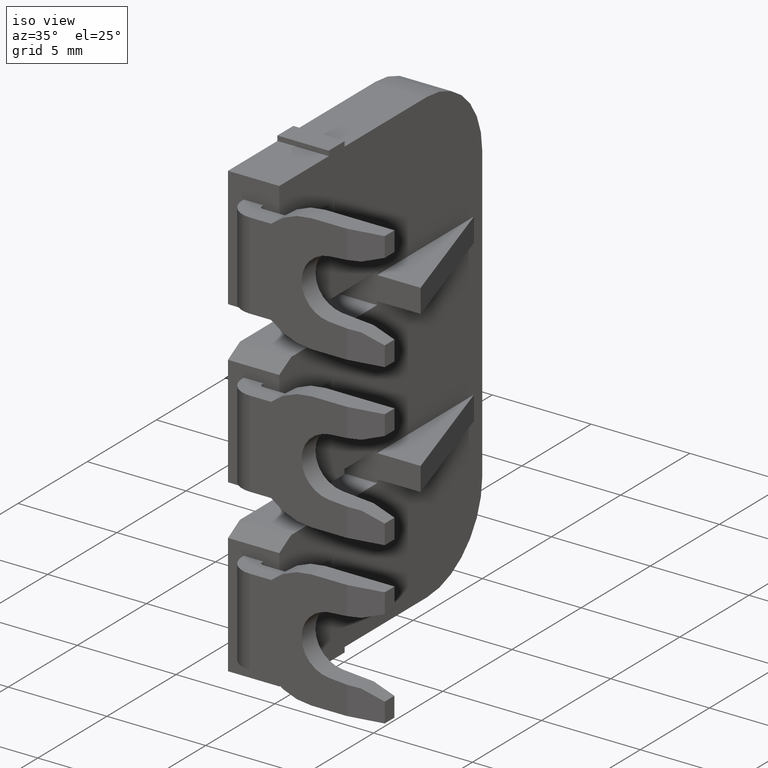
[diagram: clean part render]
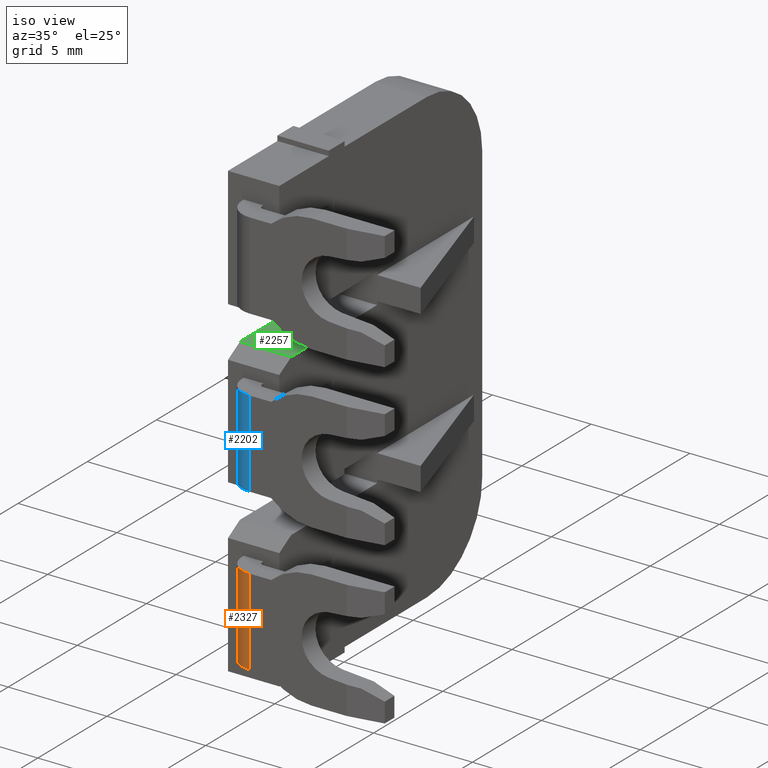
[diagram: same view with three faces highlighted in distinct colors, each labeled with its STEP entity id]
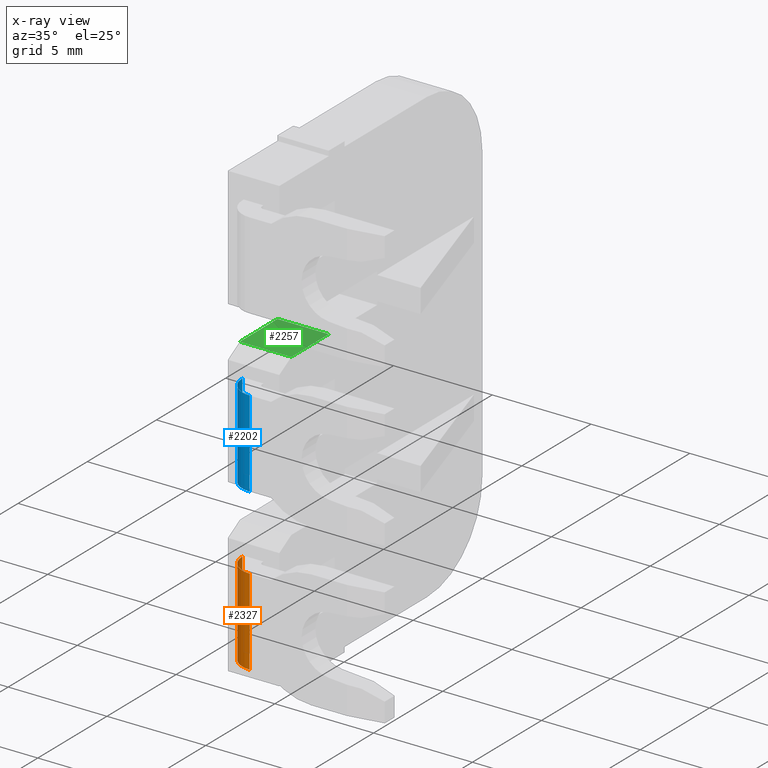
[diagram: x-ray of the same camera — body ghosted, the three highlighted faces saturated]
A machine part, iso view with three faces highlighted in distinct colors.
The next image is the same camera in x-ray (body ghosted, the three faces saturated) — at least one of them is partly hidden behind the body in this view.
Their STEP definitions:

[orange] entity #2327 — the highlighted cylindrical surface (edge-blend (fillet) strip) has radius 1.2 mm, axis along (0, 0, 1).
#854 = LINE ( 'NONE', #864, #1732 ) ;
#855 = CARTESIAN_POINT ( 'NONE',  ( 1494.445209356664000, 1080.159529724810000, -10.04999999618094000 ) ) ;
#856 = DIRECTION ( 'NONE',  ( -2.996938929019315300E-015, -8.497368414093410500E-029, -1.000000000000000000 ) ) ;
#857 = DIRECTION ( 'NONE',  ( 0.0000000000000000000, -1.000000000000000000, 0.0000000000000000000 ) ) ;
#864 = CARTESIAN_POINT ( 'NONE',  ( 1494.445209356664000, 1078.959529724810000, -10.04999999618094000 ) ) ;
#865 = DIRECTION ( 'NONE',  ( 2.996938929019320400E-015, -1.611929227616649900E-016, 1.000000000000000000 ) ) ;
#873 = DIRECTION ( 'NONE',  ( 2.996938929019315300E-015, 8.496660995733939500E-029, 1.000000000000000000 ) ) ;
#877 = DIRECTION ( 'NONE',  ( 0.0000000000000000000, -1.000000000000000000, 0.0000000000000000000 ) ) ;
#888 = CARTESIAN_POINT ( 'NONE',  ( 1494.445209356664000, 1080.159529724810000, -14.44999999618100100 ) ) ;
#1581 = VECTOR ( 'NONE', #3570, 1000.000000000000000 ) ;
#1636 = AXIS2_PLACEMENT_3D ( 'NONE', #4758, #4749, #4753 ) ;
#1705 = AXIS2_PLACEMENT_3D ( 'NONE', #888, #873, #877 ) ;
#1722 = CIRCLE ( 'NONE', #1705, 1.200000000000089900 ) ;
#1732 = VECTOR ( 'NONE', #865, 1000.000000000000000 ) ;
#1736 = AXIS2_PLACEMENT_3D ( 'NONE', #855, #856, #857 ) ;
#1741 = CIRCLE ( 'NONE', #1736, 1.200000000000089900 ) ;
#1803 = EDGE_CURVE ( 'NONE', #2776, #2865, #854, .T. ) ;
#1806 = EDGE_CURVE ( 'NONE', #2800, #2776, #1722, .T. ) ;
#1809 = EDGE_CURVE ( 'NONE', #2865, #2780, #1741, .T. ) ;
#2260 = EDGE_CURVE ( 'NONE', #2800, #2780, #3515, .T. ) ;
#2327 = ADVANCED_FACE ( 'NONE', ( #4734 ), #4721, .T. ) ;
#2474 = ORIENTED_EDGE ( 'NONE', *, *, #1809, .T. ) ;
#2475 = ORIENTED_EDGE ( 'NONE', *, *, #1803, .T. ) ;
#2481 = ORIENTED_EDGE ( 'NONE', *, *, #1806, .T. ) ;
#2515 = ORIENTED_EDGE ( 'NONE', *, *, #2260, .F. ) ;
#2776 = VERTEX_POINT ( 'NONE', #4924 ) ;
#2780 = VERTEX_POINT ( 'NONE', #4914 ) ;
#2800 = VERTEX_POINT ( 'NONE', #4897 ) ;
#2865 = VERTEX_POINT ( 'NONE', #4310 ) ;
#3045 = EDGE_LOOP ( 'NONE', ( #2515, #2481, #2475, #2474 ) ) ;
#3515 = LINE ( 'NONE', #3585, #1581 ) ;
#3570 = DIRECTION ( 'NONE',  ( 3.194066596743955000E-015, -1.611929227616649900E-016, 1.000000000000000000 ) ) ;
#3585 = CARTESIAN_POINT ( 'NONE',  ( 1493.245209356664000, 1080.159529724810000, -14.44999999618098000 ) ) ;
#4310 = CARTESIAN_POINT ( 'NONE',  ( 1494.445209356664000, 1078.959529724810000, -10.04999999618094000 ) ) ;
#4721 = CYLINDRICAL_SURFACE ( 'NONE', #1636, 1.200000000000089900 ) ;
#4734 = FACE_OUTER_BOUND ( 'NONE', #3045, .T. ) ;
#4749 = DIRECTION ( 'NONE',  ( 2.996938929019315300E-015, 8.497368414093410500E-029, 1.000000000000000000 ) ) ;
#4753 = DIRECTION ( 'NONE',  ( 0.0000000000000000000, -1.000000000000000000, 0.0000000000000000000 ) ) ;
#4758 = CARTESIAN_POINT ( 'NONE',  ( 1494.445209356664000, 1080.159529724810000, -10.04999999618094000 ) ) ;
#4897 = CARTESIAN_POINT ( 'NONE',  ( 1493.245209356664000, 1080.159529724810000, -14.44999999618098000 ) ) ;
#4914 = CARTESIAN_POINT ( 'NONE',  ( 1493.245209356664000, 1080.159529724810000, -10.04999999618092100 ) ) ;
#4924 = CARTESIAN_POINT ( 'NONE',  ( 1494.445209356664000, 1078.959529724810000, -14.44999999618100100 ) ) ;

[blue] entity #2202 — the highlighted cylindrical surface (edge-blend (fillet) strip) has radius 1.2 mm, axis along (-0, 0, -1).
#3 = DIRECTION ( 'NONE',  ( 2.996938929019315300E-015, 8.497368414093410500E-029, 1.000000000000000000 ) ) ;
#12 = CARTESIAN_POINT ( 'NONE',  ( 1494.445209356664000, 1080.159529724810000, -1.900000001912304900 ) ) ;
#14 = DIRECTION ( 'NONE',  ( 3.503727310284305400E-015, 0.0000000000000000000, 1.000000000000000000 ) ) ;
#31 = DIRECTION ( 'NONE',  ( 0.0000000000000000000, 1.000000000000000000, 0.0000000000000000000 ) ) ;
#42 = DIRECTION ( 'NONE',  ( 0.0000000000000000000, 1.000000000000000000, 0.0000000000000000000 ) ) ;
#91 = LINE ( 'NONE', #92, #1227 ) ;
#92 = CARTESIAN_POINT ( 'NONE',  ( 1494.445209356664000, 1078.959529724810000, -6.299999996180949900 ) ) ;
#106 = DIRECTION ( 'NONE',  ( 2.996938929019315300E-015, -1.611929227616649900E-016, 1.000000000000000000 ) ) ;
#129 = LINE ( 'NONE', #135, #1226 ) ;
#130 = DIRECTION ( 'NONE',  ( 3.391194264639940000E-015, 3.593474504864609500E-017, 1.000000000000000000 ) ) ;
#135 = CARTESIAN_POINT ( 'NONE',  ( 1493.245209356664000, 1080.159529724810000, -1.899999998093240100 ) ) ;
#1094 = CARTESIAN_POINT ( 'NONE',  ( 1494.445209356664000, 1080.159529724810000, -6.299999996180949900 ) ) ;
#1171 = CIRCLE ( 'NONE', #1178, 1.200000000000089900 ) ;
#1178 = AXIS2_PLACEMENT_3D ( 'NONE', #12, #14, #42 ) ;
#1195 = CIRCLE ( 'NONE', #1197, 1.200000000000089900 ) ;
#1197 = AXIS2_PLACEMENT_3D ( 'NONE', #1094, #3, #31 ) ;
#1226 = VECTOR ( 'NONE', #130, 1000.000000000000000 ) ;
#1227 = VECTOR ( 'NONE', #106, 1000.000000000000000 ) ;
#1524 = AXIS2_PLACEMENT_3D ( 'NONE', #3264, #3280, #3273 ) ;
#1881 = EDGE_CURVE ( 'NONE', #2811, #2862, #1195, .T. ) ;
#1891 = EDGE_CURVE ( 'NONE', #2855, #2835, #1171, .T. ) ;
#1912 = EDGE_CURVE ( 'NONE', #2862, #2835, #91, .T. ) ;
#1913 = EDGE_CURVE ( 'NONE', #2811, #2855, #129, .T. ) ;
#2202 = ADVANCED_FACE ( 'NONE', ( #3276 ), #3292, .T. ) ;
#2680 = ORIENTED_EDGE ( 'NONE', *, *, #1891, .F. ) ;
#2683 = ORIENTED_EDGE ( 'NONE', *, *, #1912, .T. ) ;
#2704 = ORIENTED_EDGE ( 'NONE', *, *, #1913, .F. ) ;
#2738 = ORIENTED_EDGE ( 'NONE', *, *, #1881, .T. ) ;
#2811 = VERTEX_POINT ( 'NONE', #4925 ) ;
#2835 = VERTEX_POINT ( 'NONE', #4937 ) ;
#2855 = VERTEX_POINT ( 'NONE', #4277 ) ;
#2862 = VERTEX_POINT ( 'NONE', #4302 ) ;
#3083 = EDGE_LOOP ( 'NONE', ( #2683, #2680, #2704, #2738 ) ) ;
#3264 = CARTESIAN_POINT ( 'NONE',  ( 1494.445209356664000, 1080.159529724810000, -6.299999996180949900 ) ) ;
#3273 = DIRECTION ( 'NONE',  ( -1.000000000000000000, 0.0000000000000000000, 2.891205793294462100E-015 ) ) ;
#3276 = FACE_OUTER_BOUND ( 'NONE', #3083, .T. ) ;
#3280 = DIRECTION ( 'NONE',  ( -3.003463711734375200E-015, 1.611929227616649900E-016, -1.000000000000000000 ) ) ;
#3292 = CYLINDRICAL_SURFACE ( 'NONE', #1524, 1.200000000000089900 ) ;
#4277 = CARTESIAN_POINT ( 'NONE',  ( 1493.245209356664000, 1080.159529724810000, -1.900000001912304900 ) ) ;
#4302 = CARTESIAN_POINT ( 'NONE',  ( 1494.445209356664000, 1078.959529724810000, -6.299999996180949900 ) ) ;
#4925 = CARTESIAN_POINT ( 'NONE',  ( 1493.245209356664000, 1080.159529724810000, -6.299999996180940100 ) ) ;
#4937 = CARTESIAN_POINT ( 'NONE',  ( 1494.445209356664000, 1078.959529724810000, -1.900000001912304900 ) ) ;

[green] entity #2257 — the highlighted planar face has unit normal (-0, 0, -1).
#1334 = VECTOR ( 'NONE', #3703, 1000.000000000000000 ) ;
#1427 = VECTOR ( 'NONE', #4132, 1000.000000000000000 ) ;
#1438 = VECTOR ( 'NONE', #4031, 1000.000000000000000 ) ;
#1440 = VECTOR ( 'NONE', #4029, 1000.000000000000000 ) ;
#1535 = AXIS2_PLACEMENT_3D ( 'NONE', #3550, #3551, #3514 ) ;
#2013 = EDGE_CURVE ( 'NONE', #2983, #2961, #3704, .T. ) ;
#2116 = EDGE_CURVE ( 'NONE', #3052, #3013, #4046, .T. ) ;
#2121 = EDGE_CURVE ( 'NONE', #3052, #2983, #4067, .T. ) ;
#2149 = EDGE_CURVE ( 'NONE', #2961, #3013, #4153, .T. ) ;
#2257 = ADVANCED_FACE ( 'NONE', ( #3525 ), #3548, .F. ) ;
#2355 = ORIENTED_EDGE ( 'NONE', *, *, #2116, .F. ) ;
#2357 = ORIENTED_EDGE ( 'NONE', *, *, #2149, .T. ) ;
#2391 = ORIENTED_EDGE ( 'NONE', *, *, #2013, .T. ) ;
#2961 = VERTEX_POINT ( 'NONE', #4342 ) ;
#2983 = VERTEX_POINT ( 'NONE', #4450 ) ;
#3013 = VERTEX_POINT ( 'NONE', #4415 ) ;
#3052 = VERTEX_POINT ( 'NONE', #4447 ) ;
#3189 = EDGE_LOOP ( 'NONE', ( #3190, #2391, #2357, #2355 ) ) ;
#3190 = ORIENTED_EDGE ( 'NONE', *, *, #2121, .T. ) ;
#3514 = DIRECTION ( 'NONE',  ( 1.000000000000000000, -3.062777461358170000E-016, -3.497202527569245500E-015 ) ) ;
#3525 = FACE_OUTER_BOUND ( 'NONE', #3189, .T. ) ;
#3548 = PLANE ( 'NONE',  #1535 ) ;
#3550 = CARTESIAN_POINT ( 'NONE',  ( 1490.045209356660100, 1080.434526901995900, -0.8000000000000000400 ) ) ;
#3551 = DIRECTION ( 'NONE',  ( -3.497202527569245500E-015, 4.682231220491299400E-017, -1.000000000000000000 ) ) ;
#3703 = DIRECTION ( 'NONE',  ( -3.663735981263015800E-015, 1.000000000000000000, 4.682231220492459300E-017 ) ) ;
#3704 = LINE ( 'NONE', #3729, #1334 ) ;
#3729 = CARTESIAN_POINT ( 'NONE',  ( 1495.045209356660100, 1080.434526901995900, -0.8000000000000000400 ) ) ;
#4028 = CARTESIAN_POINT ( 'NONE',  ( 1492.445209356660100, 1094.934526901996200, -0.8000000000000000400 ) ) ;
#4029 = DIRECTION ( 'NONE',  ( -3.663735981263015800E-015, 1.000000000000000000, 4.682231220492459300E-017 ) ) ;
#4031 = DIRECTION ( 'NONE',  ( 1.000000000000000000, 3.538835890992685300E-015, -3.127885073672970000E-015 ) ) ;
#4042 = CARTESIAN_POINT ( 'NONE',  ( 1490.045209356664100, 1081.125555128594000, -0.8000000000000000400 ) ) ;
#4046 = LINE ( 'NONE', #4028, #1440 ) ;
#4067 = LINE ( 'NONE', #4042, #1438 ) ;
#4132 = DIRECTION ( 'NONE',  ( -1.000000000000000000, -3.538835890992685300E-015, 3.497202527569245500E-015 ) ) ;
#4153 = LINE ( 'NONE', #4159, #1427 ) ;
#4159 = CARTESIAN_POINT ( 'NONE',  ( 1490.045209356660100, 1083.834526901990100, -0.8000000000000000400 ) ) ;
#4342 = CARTESIAN_POINT ( 'NONE',  ( 1495.045209356660100, 1083.834526901990100, -0.8000000000000000400 ) ) ;
#4415 = CARTESIAN_POINT ( 'NONE',  ( 1492.445209356660100, 1083.834526901990100, -0.8000000000000000400 ) ) ;
#4447 = CARTESIAN_POINT ( 'NONE',  ( 1492.445209356664000, 1081.125555128594000, -0.8000000000000000400 ) ) ;
#4450 = CARTESIAN_POINT ( 'NONE',  ( 1495.045209356663900, 1081.125555128594000, -0.8000000000000000400 ) ) ;